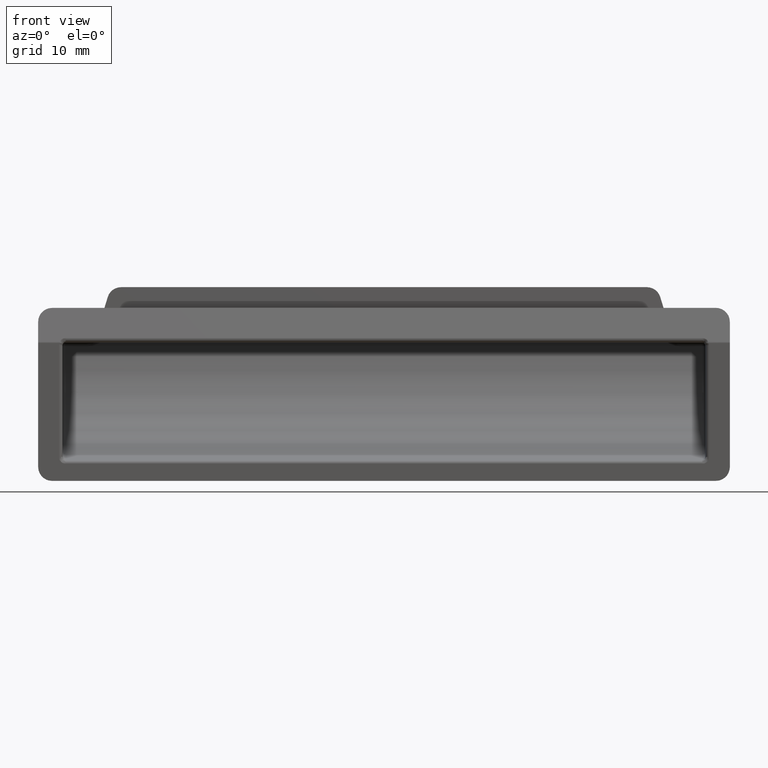
[diagram: clean part render]
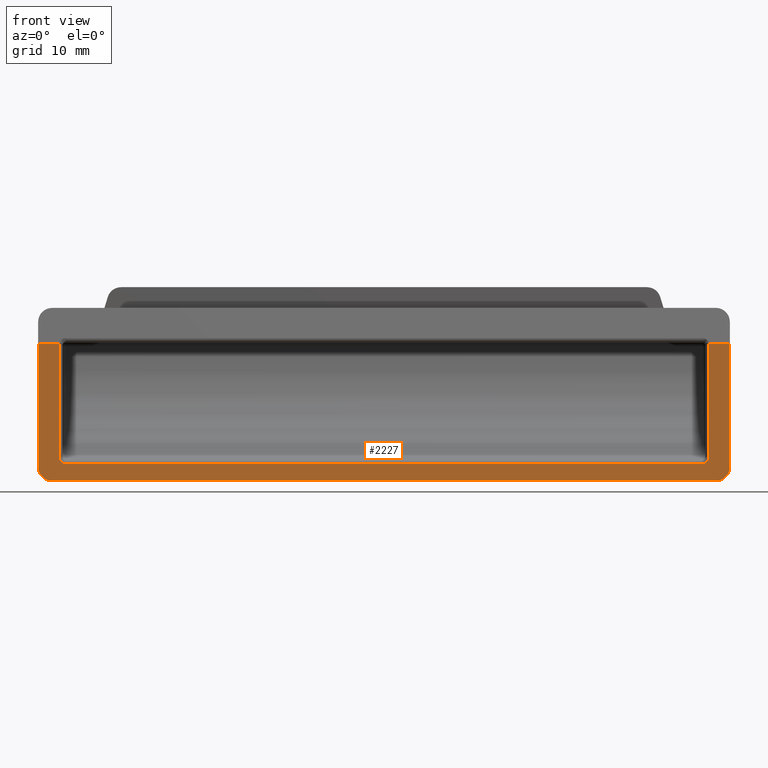
[diagram: same view with one face highlighted and labeled with its STEP entity id]
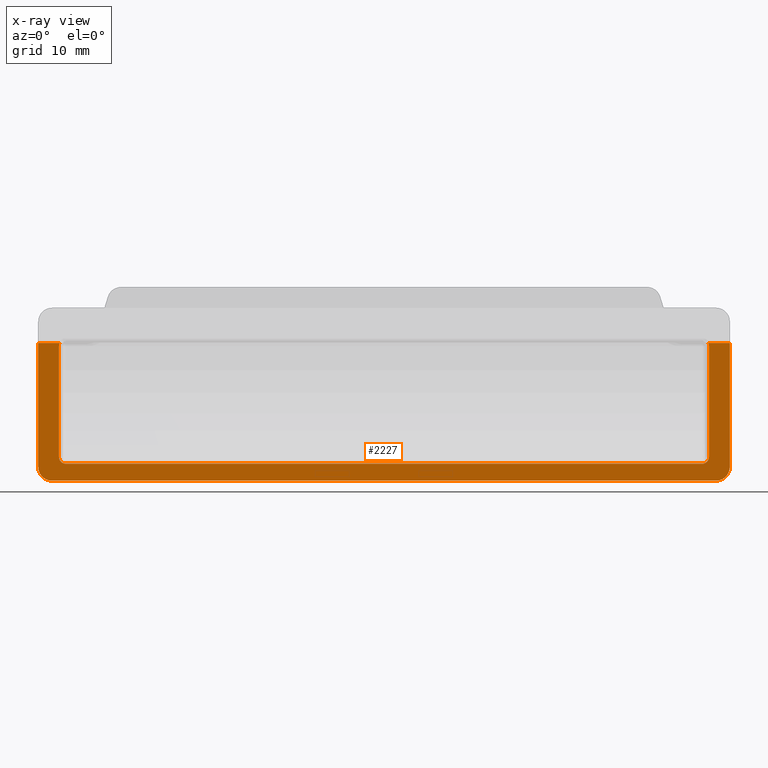
[diagram: x-ray of the same camera — body ghosted, the highlighted face saturated]
A machine part, front view. The second image highlights one B-rep face of the part: STEP entity #2227.
The next image is the same camera in x-ray: the body ghosted, the highlighted face saturated — about 0% of this face is hidden behind the body in this view.
In plain terms, the highlighted planar face has unit normal (0, -0.9972, -0.0748).
Its self-contained STEP definition (entity closure, byte-faithful):
#35 = CARTESIAN_POINT ( 'NONE',  ( 50.00000000000000000, -3.579863269111125000, -0.2684897451833180300 ) ) ;
#49 =( BOUNDED_CURVE ( )  B_SPLINE_CURVE ( 3, ( #808, #851, #1648, #790 ),
 .UNSPECIFIED., .F., .F. ) 
 B_SPLINE_CURVE_WITH_KNOTS ( ( 4, 4 ),
 ( 4.712388980384689700, 5.173604788885154600 ),
 .UNSPECIFIED. ) 
 CURVE ( )  GEOMETRIC_REPRESENTATION_ITEM ( )  RATIONAL_B_SPLINE_CURVE ( ( 1.000000000000000000, 0.9823517510669153000, 0.9823517510669153000, 1.000000000000000000 ) ) 
 REPRESENTATION_ITEM ( '' )  );
#65 = ORIENTED_EDGE ( 'NONE', *, *, #796, .T. ) ;
#109 = CARTESIAN_POINT ( 'NONE',  ( -47.00000000000000000, -1.759695376940924900, -24.53739497412079700 ) ) ;
#116 = CARTESIAN_POINT ( 'NONE',  ( -46.99999999999998600, -1.715761394118909600, -25.12318141174770500 ) ) ;
#128 = CARTESIAN_POINT ( 'NONE',  ( -46.58578643762690100, -1.684695376940929600, -25.53739497412080100 ) ) ;
#146 = EDGE_CURVE ( 'NONE', #1693, #1624, #2051, .T. ) ;
#160 = EDGE_LOOP ( 'NONE', ( #1894, #1833, #2456, #1325, #618, #1169, #2628, #2054, #686, #1685, #1089, #995, #65, #2727 ) ) ;
#170 = CARTESIAN_POINT ( 'NONE',  ( -46.00000000000000000, -1.684695376940930100, -25.53739497412080100 ) ) ;
#180 = VERTEX_POINT ( 'NONE', #1642 ) ;
#196 = EDGE_CURVE ( 'NONE', #939, #1313, #2346, .T. ) ;
#226 = CARTESIAN_POINT ( 'NONE',  ( 47.00000000000000000, -1.759695376940924900, -24.53739497412079700 ) ) ;
#291 = CARTESIAN_POINT ( 'NONE',  ( -50.00000000000000000, -1.649999999999999900, -26.00000000000000000 ) ) ;
#303 = EDGE_CURVE ( 'NONE', #1624, #2354, #1330, .T. ) ;
#382 = CARTESIAN_POINT ( 'NONE',  ( 47.00000000000000000, -2.971329161736673300, -8.382277843509829300 ) ) ;
#387 = DIRECTION ( 'NONE',  ( -1.000000000000000000, 0.0000000000000000000, 0.0000000000000000000 ) ) ;
#392 = LINE ( 'NONE', #1496, #2048 ) ;
#400 = VERTEX_POINT ( 'NONE', #1899 ) ;
#413 = FACE_OUTER_BOUND ( 'NONE', #160, .T. ) ;
#415 = VERTEX_POINT ( 'NONE', #2683 ) ;
#416 = EDGE_CURVE ( 'NONE', #1176, #778, #2607, .T. ) ;
#442 = DIRECTION ( 'NONE',  ( -1.000000000000000000, 0.0000000000000000000, 0.0000000000000000000 ) ) ;
#476 = CARTESIAN_POINT ( 'NONE',  ( 46.99999999999998600, -1.715761394118909600, -25.12318141174770500 ) ) ;
#534 = CARTESIAN_POINT ( 'NONE',  ( -48.00000000000000000, -1.500000000000000000, -28.00000000000000000 ) ) ;
#537 = EDGE_CURVE ( 'NONE', #2190, #871, #1613, .T. ) ;
#542 = VECTOR ( 'NONE', #1554, 1000.000000000000000 ) ;
#544 = CARTESIAN_POINT ( 'NONE',  ( -50.00000000000000000, -3.579863269111125000, -0.2684897451833180300 ) ) ;
#606 = VECTOR ( 'NONE', #1467, 1000.000000000000000 ) ;
#618 = ORIENTED_EDGE ( 'NONE', *, *, #1660, .F. ) ;
#627 = LINE ( 'NONE', #668, #1121 ) ;
#633 = CARTESIAN_POINT ( 'NONE',  ( -50.00000000000000000, -2.993073167452394900, -8.092357767300210700 ) ) ;
#668 = CARTESIAN_POINT ( 'NONE',  ( 950.0000000000000000, -1.684695376940930100, -25.53739497412080100 ) ) ;
#686 = ORIENTED_EDGE ( 'NONE', *, *, #1442, .T. ) ;
#733 = EDGE_CURVE ( 'NONE', #400, #1588, #392, .T. ) ;
#778 = VERTEX_POINT ( 'NONE', #534 ) ;
#789 = CARTESIAN_POINT ( 'NONE',  ( 46.58578643762690100, -1.684695376940929600, -25.53739497412080100 ) ) ;
#790 = CARTESIAN_POINT ( 'NONE',  ( -46.89551207950830000, -2.993073167452394900, -8.092357767300200100 ) ) ;
#796 = EDGE_CURVE ( 'NONE', #180, #415, #1909, .T. ) ;
#806 = VECTOR ( 'NONE', #1252, 1000.000000000000000 ) ;
#808 = CARTESIAN_POINT ( 'NONE',  ( -47.00000000000000000, -2.959695376940849600, -8.537394974120820400 ) ) ;
#851 = CARTESIAN_POINT ( 'NONE',  ( -47.00000000000000000, -2.971329161736674600, -8.382277843509815100 ) ) ;
#868 = CARTESIAN_POINT ( 'NONE',  ( 950.0000000000000000, -1.500000000000000000, -28.00000000000000000 ) ) ;
#871 = VERTEX_POINT ( 'NONE', #2020 ) ;
#893 = VECTOR ( 'NONE', #1500, 1000.000000000000000 ) ;
#939 = VERTEX_POINT ( 'NONE', #2666 ) ;
#995 = ORIENTED_EDGE ( 'NONE', *, *, #1975, .T. ) ;
#1003 = CARTESIAN_POINT ( 'NONE',  ( 950.0000000000000000, -1.500000000000000000, -28.00000000000000000 ) ) ;
#1068 = DIRECTION ( 'NONE',  ( -0.0000000000000000000, -0.07478994824162968300, 0.9971993098884567300 ) ) ;
#1070 = DIRECTION ( 'NONE',  ( -1.000000000000000000, 0.0000000000000000000, 0.0000000000000000000 ) ) ;
#1089 = ORIENTED_EDGE ( 'NONE', *, *, #303, .T. ) ;
#1121 = VECTOR ( 'NONE', #442, 1000.000000000000000 ) ;
#1169 = ORIENTED_EDGE ( 'NONE', *, *, #537, .T. ) ;
#1171 = CARTESIAN_POINT ( 'NONE',  ( -49.17157287525381500, -1.500000000000009500, -27.99999999999999300 ) ) ;
#1176 = VERTEX_POINT ( 'NONE', #291 ) ;
#1209 = DIRECTION ( 'NONE',  ( 0.0000000000000000000, 0.07478994824162968300, -0.9971993098884567300 ) ) ;
#1242 = CARTESIAN_POINT ( 'NONE',  ( 47.00000000000000000, -1.759695376940924900, -24.53739497412079700 ) ) ;
#1252 = DIRECTION ( 'NONE',  ( 0.0000000000000000000, 0.07478994824162968300, -0.9971993098884567300 ) ) ;
#1262 = CARTESIAN_POINT ( 'NONE',  ( 47.00000000000000000, -1.762500000000000000, -24.50000000000000000 ) ) ;
#1313 = VERTEX_POINT ( 'NONE', #1904 ) ;
#1325 = ORIENTED_EDGE ( 'NONE', *, *, #416, .T. ) ;
#1330 =( BOUNDED_CURVE ( )  B_SPLINE_CURVE ( 3, ( #1242, #476, #789, #1398 ),
 .UNSPECIFIED., .F., .T. ) 
 B_SPLINE_CURVE_WITH_KNOTS ( ( 4, 4 ),
 ( 1.570796326794896600, 3.141592653589793100 ),
 .UNSPECIFIED. ) 
 CURVE ( )  GEOMETRIC_REPRESENTATION_ITEM ( )  RATIONAL_B_SPLINE_CURVE ( ( 1.000000000000000000, 0.8047378541243649400, 0.8047378541243649400, 1.000000000000000000 ) ) 
 REPRESENTATION_ITEM ( '' )  );
#1382 = CARTESIAN_POINT ( 'NONE',  ( 46.89551207950840000, -2.993073167452394900, -8.092357767300200100 ) ) ;
#1398 = CARTESIAN_POINT ( 'NONE',  ( 46.00000000000000000, -1.684695376940930100, -25.53739497412080100 ) ) ;
#1442 = EDGE_CURVE ( 'NONE', #1313, #1693, #1993, .T. ) ;
#1467 = DIRECTION ( 'NONE',  ( -1.000000000000000000, 0.0000000000000000000, 0.0000000000000000000 ) ) ;
#1496 = CARTESIAN_POINT ( 'NONE',  ( 950.0000000000000000, -2.993073167452394900, -8.092357767300200100 ) ) ;
#1500 = DIRECTION ( 'NONE',  ( 0.0000000000000000000, -0.07478994824162968300, 0.9971993098884567300 ) ) ;
#1527 = LINE ( 'NONE', #2112, #1599 ) ;
#1543 = VERTEX_POINT ( 'NONE', #1900 ) ;
#1554 = DIRECTION ( 'NONE',  ( 0.0000000000000000000, -0.07478994824162968300, 0.9971993098884567300 ) ) ;
#1588 = VERTEX_POINT ( 'NONE', #633 ) ;
#1593 = EDGE_CURVE ( 'NONE', #1543, #400, #49, .T. ) ;
#1595 = CARTESIAN_POINT ( 'NONE',  ( 48.00000000000000000, -1.500000000000000000, -28.00000000000000000 ) ) ;
#1599 = VECTOR ( 'NONE', #1068, 1000.000000000000000 ) ;
#1613 =( BOUNDED_CURVE ( )  B_SPLINE_CURVE ( 3, ( #1595, #2615, #2635, #2376 ),
 .UNSPECIFIED., .F., .F. ) 
 B_SPLINE_CURVE_WITH_KNOTS ( ( 4, 4 ),
 ( 0.0000000000000000000, 1.570796326794896600 ),
 .UNSPECIFIED. ) 
 CURVE ( )  GEOMETRIC_REPRESENTATION_ITEM ( )  RATIONAL_B_SPLINE_CURVE ( ( 1.000000000000000000, 0.8047378541243649400, 0.8047378541243649400, 1.000000000000000000 ) ) 
 REPRESENTATION_ITEM ( '' )  );
#1617 = PLANE ( 'NONE',  #2640 ) ;
#1624 = VERTEX_POINT ( 'NONE', #226 ) ;
#1639 = LINE ( 'NONE', #868, #606 ) ;
#1642 = CARTESIAN_POINT ( 'NONE',  ( -46.00000000000000000, -1.684695376940930100, -25.53739497412080100 ) ) ;
#1648 = CARTESIAN_POINT ( 'NONE',  ( -46.96454497404545900, -2.982654972637333500, -8.231267031501021200 ) ) ;
#1660 = EDGE_CURVE ( 'NONE', #2190, #778, #1639, .T. ) ;
#1685 = ORIENTED_EDGE ( 'NONE', *, *, #146, .T. ) ;
#1693 = VERTEX_POINT ( 'NONE', #2323 ) ;
#1783 = VECTOR ( 'NONE', #1070, 1000.000000000000000 ) ;
#1787 = EDGE_CURVE ( 'NONE', #871, #939, #2005, .T. ) ;
#1833 = ORIENTED_EDGE ( 'NONE', *, *, #733, .T. ) ;
#1894 = ORIENTED_EDGE ( 'NONE', *, *, #1593, .T. ) ;
#1899 = CARTESIAN_POINT ( 'NONE',  ( -46.89551207950830000, -2.993073167452394900, -8.092357767300200100 ) ) ;
#1900 = CARTESIAN_POINT ( 'NONE',  ( -47.00000000000000000, -2.959695376940849600, -8.537394974120820400 ) ) ;
#1904 = CARTESIAN_POINT ( 'NONE',  ( 46.89551207950840000, -2.993073167452394900, -8.092357767300200100 ) ) ;
#1909 =( BOUNDED_CURVE ( )  B_SPLINE_CURVE ( 3, ( #170, #128, #116, #109 ),
 .UNSPECIFIED., .F., .F. ) 
 B_SPLINE_CURVE_WITH_KNOTS ( ( 4, 4 ),
 ( 0.0000000000000000000, 1.570796326794896600 ),
 .UNSPECIFIED. ) 
 CURVE ( )  GEOMETRIC_REPRESENTATION_ITEM ( )  RATIONAL_B_SPLINE_CURVE ( ( 1.000000000000000000, 0.8047378541243649400, 0.8047378541243649400, 1.000000000000000000 ) ) 
 REPRESENTATION_ITEM ( '' )  );
#1975 = EDGE_CURVE ( 'NONE', #2354, #180, #627, .T. ) ;
#1993 =( BOUNDED_CURVE ( )  B_SPLINE_CURVE ( 3, ( #1382, #2073, #382, #2711 ),
 .UNSPECIFIED., .F., .F. ) 
 B_SPLINE_CURVE_WITH_KNOTS ( ( 4, 4 ),
 ( 4.251173171884270000, 4.712388980384689700 ),
 .UNSPECIFIED. ) 
 CURVE ( )  GEOMETRIC_REPRESENTATION_ITEM ( )  RATIONAL_B_SPLINE_CURVE ( ( 1.000000000000000000, 0.9823517510669186300, 0.9823517510669186300, 1.000000000000000000 ) ) 
 REPRESENTATION_ITEM ( '' )  );
#2005 = LINE ( 'NONE', #35, #893 ) ;
#2020 = CARTESIAN_POINT ( 'NONE',  ( 50.00000000000000000, -1.649999999999999900, -26.00000000000000000 ) ) ;
#2048 = VECTOR ( 'NONE', #387, 1000.000000000000000 ) ;
#2051 = LINE ( 'NONE', #1262, #806 ) ;
#2054 = ORIENTED_EDGE ( 'NONE', *, *, #196, .T. ) ;
#2073 = CARTESIAN_POINT ( 'NONE',  ( 46.96454497404547400, -2.982654972637331700, -8.231267031501051400 ) ) ;
#2112 = CARTESIAN_POINT ( 'NONE',  ( -47.00000000000000000, -1.500000000000000000, -28.00000000000000000 ) ) ;
#2141 = EDGE_CURVE ( 'NONE', #1176, #1588, #2202, .T. ) ;
#2147 = CARTESIAN_POINT ( 'NONE',  ( -50.00000000000000000, -1.649999999999999900, -26.00000000000000000 ) ) ;
#2190 = VERTEX_POINT ( 'NONE', #2465 ) ;
#2202 = LINE ( 'NONE', #544, #542 ) ;
#2227 = ADVANCED_FACE ( 'NONE', ( #413 ), #1617, .T. ) ;
#2265 = CARTESIAN_POINT ( 'NONE',  ( 950.0000000000000000, -2.993073167452394900, -8.092357767300200100 ) ) ;
#2323 = CARTESIAN_POINT ( 'NONE',  ( 47.00000000000000000, -2.959695376940849600, -8.537394974120820400 ) ) ;
#2346 = LINE ( 'NONE', #2265, #1783 ) ;
#2354 = VERTEX_POINT ( 'NONE', #2518 ) ;
#2376 = CARTESIAN_POINT ( 'NONE',  ( 50.00000000000000000, -1.649999999999999900, -26.00000000000000000 ) ) ;
#2456 = ORIENTED_EDGE ( 'NONE', *, *, #2141, .F. ) ;
#2465 = CARTESIAN_POINT ( 'NONE',  ( 48.00000000000000000, -1.500000000000000000, -28.00000000000000000 ) ) ;
#2474 = DIRECTION ( 'NONE',  ( 0.0000000000000000000, -0.9971993098884567300, -0.07478994824162968300 ) ) ;
#2489 = EDGE_CURVE ( 'NONE', #415, #1543, #1527, .T. ) ;
#2518 = CARTESIAN_POINT ( 'NONE',  ( 46.00000000000000000, -1.684695376940930100, -25.53739497412080100 ) ) ;
#2588 = CARTESIAN_POINT ( 'NONE',  ( -50.00000000000000000, -1.562132034355969900, -27.17157287525380800 ) ) ;
#2607 =( BOUNDED_CURVE ( )  B_SPLINE_CURVE ( 3, ( #2147, #2588, #1171, #2626 ),
 .UNSPECIFIED., .F., .T. ) 
 B_SPLINE_CURVE_WITH_KNOTS ( ( 4, 4 ),
 ( 1.570796326794896600, 3.141592653589793100 ),
 .UNSPECIFIED. ) 
 CURVE ( )  GEOMETRIC_REPRESENTATION_ITEM ( )  RATIONAL_B_SPLINE_CURVE ( ( 1.000000000000000000, 0.8047378541243649400, 0.8047378541243649400, 1.000000000000000000 ) ) 
 REPRESENTATION_ITEM ( '' )  );
#2615 = CARTESIAN_POINT ( 'NONE',  ( 49.17157287525381500, -1.500000000000009500, -27.99999999999999300 ) ) ;
#2626 = CARTESIAN_POINT ( 'NONE',  ( -48.00000000000000000, -1.500000000000000000, -28.00000000000000000 ) ) ;
#2628 = ORIENTED_EDGE ( 'NONE', *, *, #1787, .T. ) ;
#2635 = CARTESIAN_POINT ( 'NONE',  ( 50.00000000000000000, -1.562132034355969900, -27.17157287525380800 ) ) ;
#2640 = AXIS2_PLACEMENT_3D ( 'NONE', #1003, #2474, #1209 ) ;
#2666 = CARTESIAN_POINT ( 'NONE',  ( 50.00000000000000000, -2.993073167452394900, -8.092357767300210700 ) ) ;
#2683 = CARTESIAN_POINT ( 'NONE',  ( -47.00000000000000000, -1.759695376940924900, -24.53739497412079700 ) ) ;
#2711 = CARTESIAN_POINT ( 'NONE',  ( 47.00000000000000000, -2.959695376940849600, -8.537394974120820400 ) ) ;
#2727 = ORIENTED_EDGE ( 'NONE', *, *, #2489, .T. ) ;